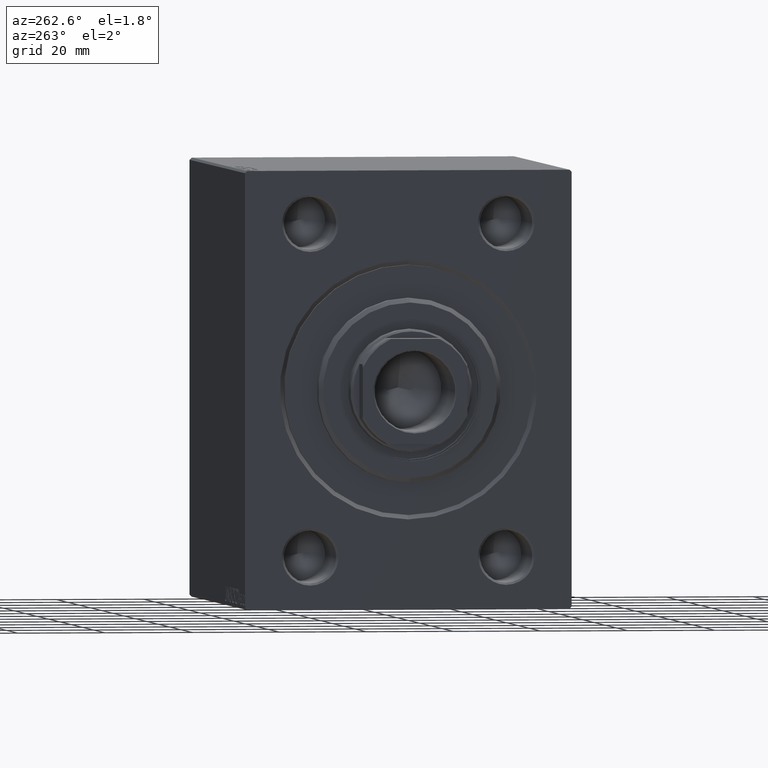
[diagram: clean part render]
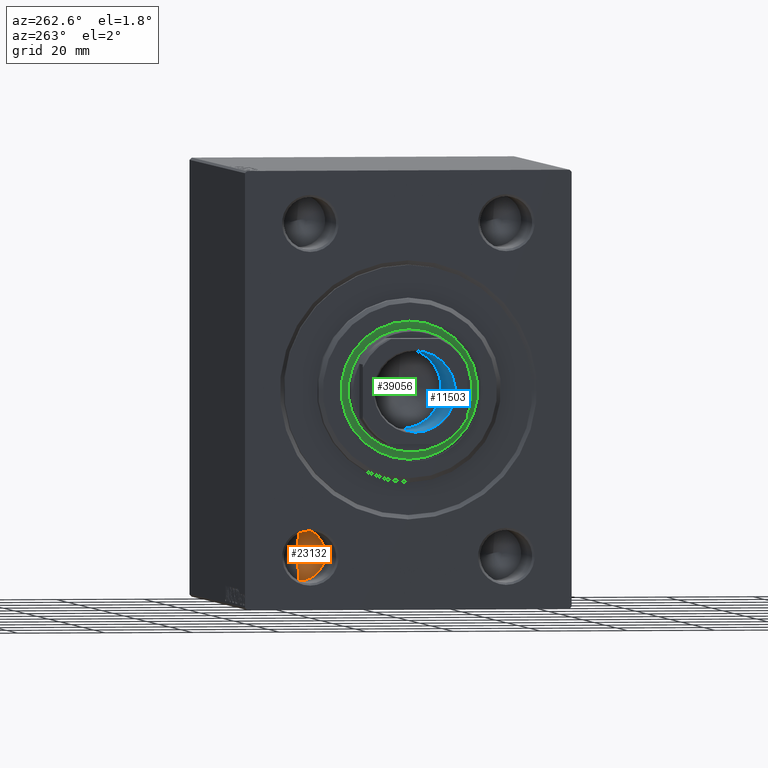
[diagram: same view with three faces highlighted in distinct colors, each labeled with its STEP entity id]
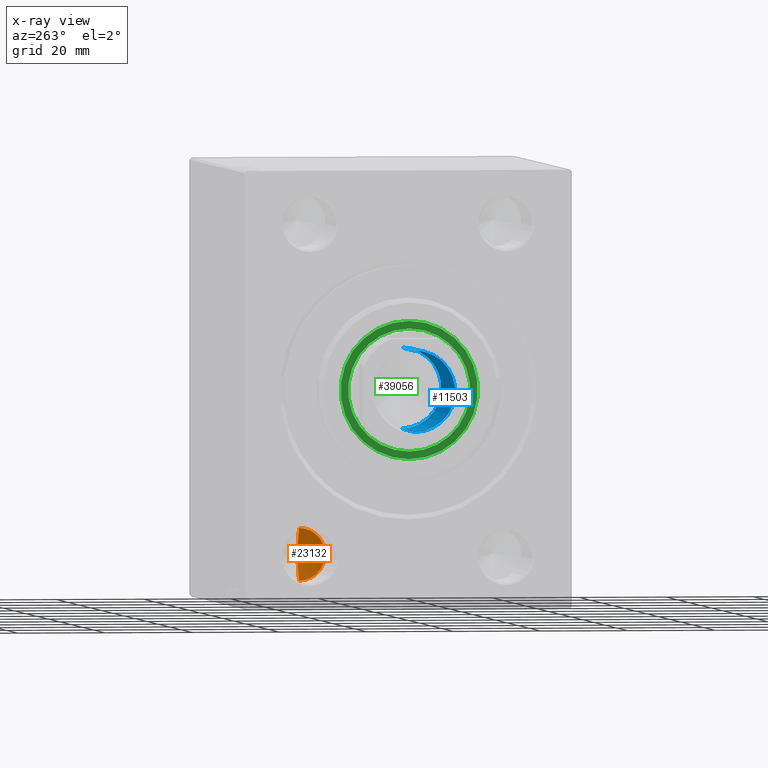
[diagram: x-ray of the same camera — body ghosted, the three highlighted faces saturated]
A machine part, auxiliary view with three faces highlighted in distinct colors.
The next image is the same camera in x-ray (body ghosted, the three faces saturated) — at least one of them is partly hidden behind the body in this view.
Their STEP definitions:

[orange] entity #23132 — the highlighted conical surface has half-angle 59 deg.
#402 = AXIS2_PLACEMENT_3D ( 'NONE', #42082, #18454, #32192 ) ;
#566 = ORIENTED_EDGE ( 'NONE', *, *, #10981, .T. ) ;
#2025 = CARTESIAN_POINT ( 'NONE',  ( 20.00000000000000000, 22.50000000000000000, -32.00000000000000711 ) ) ;
#4797 = DIRECTION ( 'NONE',  ( -0.5150380749100549327, 1.049727191138618079E-16, -0.8571673007021118895 ) ) ;
#5236 = CONICAL_SURFACE ( 'NONE', #38995, 5.999999999999998224, 1.029744258676653645 ) ;
#6032 = DIRECTION ( 'NONE',  ( -0.5150380749100549327, 0.000000000000000000, 0.8571673007021118895 ) ) ;
#7452 = VECTOR ( 'NONE', #6032, 1000.000000000000000 ) ;
#7511 = DIRECTION ( 'NONE',  ( 0.000000000000000000, 0.000000000000000000, 1.000000000000000000 ) ) ;
#8532 = CARTESIAN_POINT ( 'NONE',  ( 23.60516371416536430, 22.49999999999999289, -38.00000000000000711 ) ) ;
#10981 = EDGE_CURVE ( 'NONE', #12796, #38344, #39188, .T. ) ;
#11093 = CARTESIAN_POINT ( 'NONE',  ( 20.00000000000000000, 22.50000000000000000, -38.00000000000000711 ) ) ;
#11746 = CARTESIAN_POINT ( 'NONE',  ( 20.00000000000000000, 22.50000000000000000, -44.00000000000000711 ) ) ;
#12796 = VERTEX_POINT ( 'NONE', #11746 ) ;
#16131 = LINE ( 'NONE', #36619, #7452 ) ;
#17601 = DIRECTION ( 'NONE',  ( -1.000000000000000000, -0.000000000000000000, -0.000000000000000000 ) ) ;
#18454 = DIRECTION ( 'NONE',  ( -1.000000000000000000, -0.000000000000000000, -0.000000000000000000 ) ) ;
#20559 = EDGE_CURVE ( 'NONE', #36472, #12796, #21647, .T. ) ;
#21647 = LINE ( 'NONE', #35607, #37512 ) ;
#23132 = ADVANCED_FACE ( 'NONE', ( #24371 ), #5236, .F. ) ;
#24371 = FACE_OUTER_BOUND ( 'NONE', #29691, .T. ) ;
#26100 = EDGE_CURVE ( 'NONE', #36472, #38344, #16131, .T. ) ;
#26862 = ORIENTED_EDGE ( 'NONE', *, *, #26100, .F. ) ;
#29691 = EDGE_LOOP ( 'NONE', ( #26862, #38288, #566 ) ) ;
#32192 = DIRECTION ( 'NONE',  ( 0.000000000000000000, 0.000000000000000000, 1.000000000000000000 ) ) ;
#35607 = CARTESIAN_POINT ( 'NONE',  ( 20.00000000000000000, 22.50000000000000000, -44.00000000000000711 ) ) ;
#36472 = VERTEX_POINT ( 'NONE', #8532 ) ;
#36619 = CARTESIAN_POINT ( 'NONE',  ( 20.00000000000000000, 22.50000000000000000, -32.00000000000000711 ) ) ;
#37512 = VECTOR ( 'NONE', #4797, 1000.000000000000000 ) ;
#38288 = ORIENTED_EDGE ( 'NONE', *, *, #20559, .T. ) ;
#38344 = VERTEX_POINT ( 'NONE', #2025 ) ;
#38995 = AXIS2_PLACEMENT_3D ( 'NONE', #11093, #17601, #7511 ) ;
#39188 = CIRCLE ( 'NONE', #402, 5.999999999999998224 ) ;
#42082 = CARTESIAN_POINT ( 'NONE',  ( 20.00000000000000000, 22.50000000000000000, -38.00000000000000711 ) ) ;

[blue] entity #11503 — the highlighted cylindrical surface (partial cylindrical patch) has radius 9.25 mm, axis along (-1, 0, 0).
#489 = CARTESIAN_POINT ( 'NONE',  ( 9.249999999999994671, 0.000000000000000000, 71.00000000000001421 ) ) ;
#826 = DIRECTION ( 'NONE',  ( -0.000000000000000000, -0.000000000000000000, 1.000000000000000000 ) ) ;
#1051 = DIRECTION ( 'NONE',  ( 1.000000000000000000, 0.000000000000000000, 0.000000000000000000 ) ) ;
#1274 = CARTESIAN_POINT ( 'NONE',  ( 0.000000000000000000, 0.000000000000000000, 96.00000000000000000 ) ) ;
#3110 = CIRCLE ( 'NONE', #41170, 9.249999999999994671 ) ;
#3362 = CARTESIAN_POINT ( 'NONE',  ( 0.000000000000000000, 0.000000000000000000, 95.70000000000000284 ) ) ;
#4104 = ORIENTED_EDGE ( 'NONE', *, *, #4203, .T. ) ;
#4203 = EDGE_CURVE ( 'NONE', #19050, #9166, #3110, .T. ) ;
#5073 = DIRECTION ( 'NONE',  ( -0.000000000000000000, -0.000000000000000000, 1.000000000000000000 ) ) ;
#5644 = CARTESIAN_POINT ( 'NONE',  ( -9.249999999999994671, 1.132798289211300909E-15, 96.00000000000000000 ) ) ;
#5786 = AXIS2_PLACEMENT_3D ( 'NONE', #1274, #826, #1051 ) ;
#9166 = VERTEX_POINT ( 'NONE', #35646 ) ;
#10663 = EDGE_CURVE ( 'NONE', #21518, #9166, #30919, .T. ) ;
#11503 = ADVANCED_FACE ( 'NONE', ( #33914 ), #18118, .F. ) ;
#13809 = CARTESIAN_POINT ( 'NONE',  ( -9.249999999999994671, 1.132798289211300909E-15, 95.70000000000000284 ) ) ;
#14793 = CARTESIAN_POINT ( 'NONE',  ( -9.249999999999994671, 1.132798289211300909E-15, 71.00000000000001421 ) ) ;
#17387 = CARTESIAN_POINT ( 'NONE',  ( 9.249999999999994671, 0.000000000000000000, 96.00000000000000000 ) ) ;
#18118 = CYLINDRICAL_SURFACE ( 'NONE', #5786, 9.249999999999994671 ) ;
#18458 = ORIENTED_EDGE ( 'NONE', *, *, #10663, .F. ) ;
#19050 = VERTEX_POINT ( 'NONE', #13809 ) ;
#20460 = CIRCLE ( 'NONE', #22626, 9.249999999999994671 ) ;
#21518 = VERTEX_POINT ( 'NONE', #489 ) ;
#22626 = AXIS2_PLACEMENT_3D ( 'NONE', #39039, #5073, #35887 ) ;
#23379 = DIRECTION ( 'NONE',  ( 1.000000000000000000, 0.000000000000000000, 0.000000000000000000 ) ) ;
#23437 = VERTEX_POINT ( 'NONE', #14793 ) ;
#23815 = DIRECTION ( 'NONE',  ( 0.000000000000000000, 0.000000000000000000, 1.000000000000000000 ) ) ;
#25698 = EDGE_LOOP ( 'NONE', ( #29844, #30728, #4104, #18458 ) ) ;
#26961 = VECTOR ( 'NONE', #34507, 1000.000000000000000 ) ;
#29383 = EDGE_CURVE ( 'NONE', #23437, #21518, #20460, .T. ) ;
#29844 = ORIENTED_EDGE ( 'NONE', *, *, #29383, .F. ) ;
#30728 = ORIENTED_EDGE ( 'NONE', *, *, #30922, .T. ) ;
#30919 = LINE ( 'NONE', #17387, #26961 ) ;
#30922 = EDGE_CURVE ( 'NONE', #23437, #19050, #39824, .T. ) ;
#31290 = VECTOR ( 'NONE', #36456, 1000.000000000000000 ) ;
#33914 = FACE_OUTER_BOUND ( 'NONE', #25698, .T. ) ;
#34507 = DIRECTION ( 'NONE',  ( -0.000000000000000000, -0.000000000000000000, 1.000000000000000000 ) ) ;
#35646 = CARTESIAN_POINT ( 'NONE',  ( 9.249999999999994671, 0.000000000000000000, 95.70000000000000284 ) ) ;
#35887 = DIRECTION ( 'NONE',  ( 1.000000000000000000, 0.000000000000000000, 0.000000000000000000 ) ) ;
#36456 = DIRECTION ( 'NONE',  ( -0.000000000000000000, -0.000000000000000000, 1.000000000000000000 ) ) ;
#39039 = CARTESIAN_POINT ( 'NONE',  ( 0.000000000000000000, 0.000000000000000000, 71.00000000000001421 ) ) ;
#39824 = LINE ( 'NONE', #5644, #31290 ) ;
#41170 = AXIS2_PLACEMENT_3D ( 'NONE', #3362, #23815, #23379 ) ;

[green] entity #39056 — the highlighted planar face has unit normal (-1, 0, 0).
#3911 = DIRECTION ( 'NONE',  ( 0.000000000000000000, 0.000000000000000000, -1.000000000000000000 ) ) ;
#4542 = ORIENTED_EDGE ( 'NONE', *, *, #40588, .T. ) ;
#5739 = EDGE_CURVE ( 'NONE', #21020, #18182, #42609, .T. ) ;
#6137 = CIRCLE ( 'NONE', #24065, 14.00000000000000178 ) ;
#6635 = CARTESIAN_POINT ( 'NONE',  ( 1.500000000000000000, 1.928818708657080950E-15, -15.75000000000000000 ) ) ;
#8665 = PLANE ( 'NONE',  #34279 ) ;
#10732 = EDGE_LOOP ( 'NONE', ( #18926, #29776 ) ) ;
#10856 = ORIENTED_EDGE ( 'NONE', *, *, #5739, .T. ) ;
#11766 = DIRECTION ( 'NONE',  ( 1.000000000000000000, 0.000000000000000000, 0.000000000000000000 ) ) ;
#12926 = DIRECTION ( 'NONE',  ( 1.000000000000000000, 0.000000000000000000, 0.000000000000000000 ) ) ;
#15110 = VERTEX_POINT ( 'NONE', #16696 ) ;
#15469 = DIRECTION ( 'NONE',  ( 0.000000000000000000, 0.000000000000000000, -1.000000000000000000 ) ) ;
#15906 = CARTESIAN_POINT ( 'NONE',  ( 1.500000000000000000, 0.000000000000000000, 0.000000000000000000 ) ) ;
#16233 = CARTESIAN_POINT ( 'NONE',  ( 1.500000000000000000, 0.000000000000000000, 0.000000000000000000 ) ) ;
#16505 = FACE_BOUND ( 'NONE', #10732, .T. ) ;
#16696 = CARTESIAN_POINT ( 'NONE',  ( 1.499999999999999556, 1.714505518806294835E-15, 14.00000000000000178 ) ) ;
#17269 = CARTESIAN_POINT ( 'NONE',  ( 1.500000000000000000, 0.000000000000000000, 15.75000000000000000 ) ) ;
#18182 = VERTEX_POINT ( 'NONE', #6635 ) ;
#18926 = ORIENTED_EDGE ( 'NONE', *, *, #29564, .F. ) ;
#19199 = CIRCLE ( 'NONE', #42188, 15.75000000000000000 ) ;
#20171 = CARTESIAN_POINT ( 'NONE',  ( 1.499999999999999556, 0.000000000000000000, -14.00000000000000178 ) ) ;
#21020 = VERTEX_POINT ( 'NONE', #17269 ) ;
#24065 = AXIS2_PLACEMENT_3D ( 'NONE', #25243, #11766, #3911 ) ;
#25243 = CARTESIAN_POINT ( 'NONE',  ( 1.499999999999999556, 0.000000000000000000, 0.000000000000000000 ) ) ;
#26155 = AXIS2_PLACEMENT_3D ( 'NONE', #16233, #29743, #43453 ) ;
#26186 = CIRCLE ( 'NONE', #35530, 14.00000000000000178 ) ;
#26265 = DIRECTION ( 'NONE',  ( 1.000000000000000000, 0.000000000000000000, 0.000000000000000000 ) ) ;
#26274 = EDGE_LOOP ( 'NONE', ( #10856, #4542 ) ) ;
#28339 = EDGE_CURVE ( 'NONE', #15110, #44464, #26186, .T. ) ;
#29352 = FACE_OUTER_BOUND ( 'NONE', #26274, .T. ) ;
#29564 = EDGE_CURVE ( 'NONE', #44464, #15110, #6137, .T. ) ;
#29743 = DIRECTION ( 'NONE',  ( 1.000000000000000000, 0.000000000000000000, 0.000000000000000000 ) ) ;
#29776 = ORIENTED_EDGE ( 'NONE', *, *, #28339, .F. ) ;
#29846 = CARTESIAN_POINT ( 'NONE',  ( 1.499999999999999556, 0.000000000000000000, 0.000000000000000000 ) ) ;
#30025 = CARTESIAN_POINT ( 'NONE',  ( 1.500000000000000000, 0.000000000000000000, 0.000000000000000000 ) ) ;
#33156 = DIRECTION ( 'NONE',  ( 0.000000000000000000, 0.000000000000000000, -1.000000000000000000 ) ) ;
#34279 = AXIS2_PLACEMENT_3D ( 'NONE', #30025, #12926, #33156 ) ;
#35530 = AXIS2_PLACEMENT_3D ( 'NONE', #29846, #43784, #36156 ) ;
#36156 = DIRECTION ( 'NONE',  ( 0.000000000000000000, 0.000000000000000000, -1.000000000000000000 ) ) ;
#39056 = ADVANCED_FACE ( 'NONE', ( #16505, #29352 ), #8665, .T. ) ;
#40588 = EDGE_CURVE ( 'NONE', #18182, #21020, #19199, .T. ) ;
#42188 = AXIS2_PLACEMENT_3D ( 'NONE', #15906, #26265, #15469 ) ;
#42609 = CIRCLE ( 'NONE', #26155, 15.75000000000000000 ) ;
#43453 = DIRECTION ( 'NONE',  ( 0.000000000000000000, 0.000000000000000000, -1.000000000000000000 ) ) ;
#43784 = DIRECTION ( 'NONE',  ( 1.000000000000000000, 0.000000000000000000, 0.000000000000000000 ) ) ;
#44464 = VERTEX_POINT ( 'NONE', #20171 ) ;